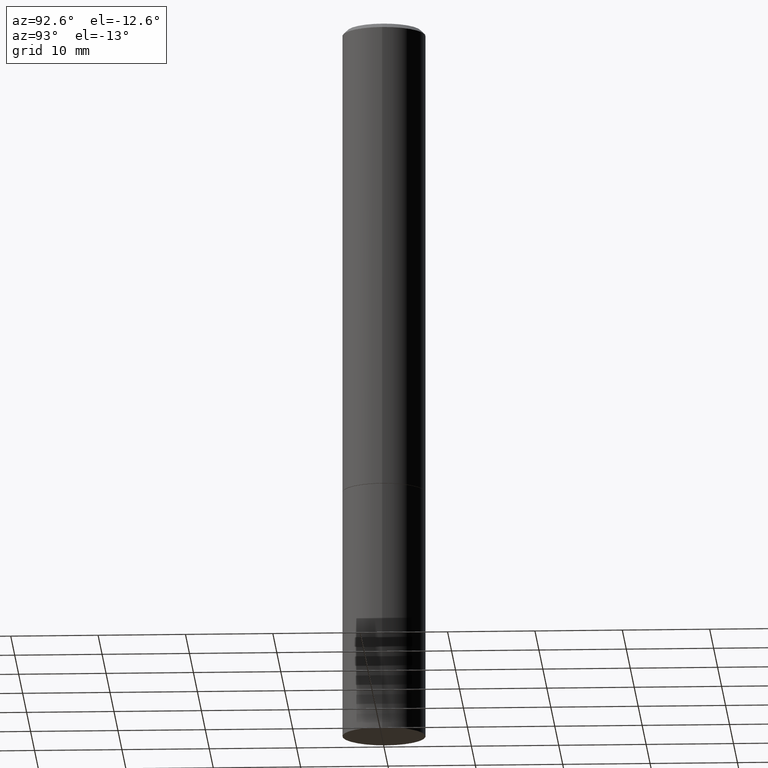
[diagram: clean part render]
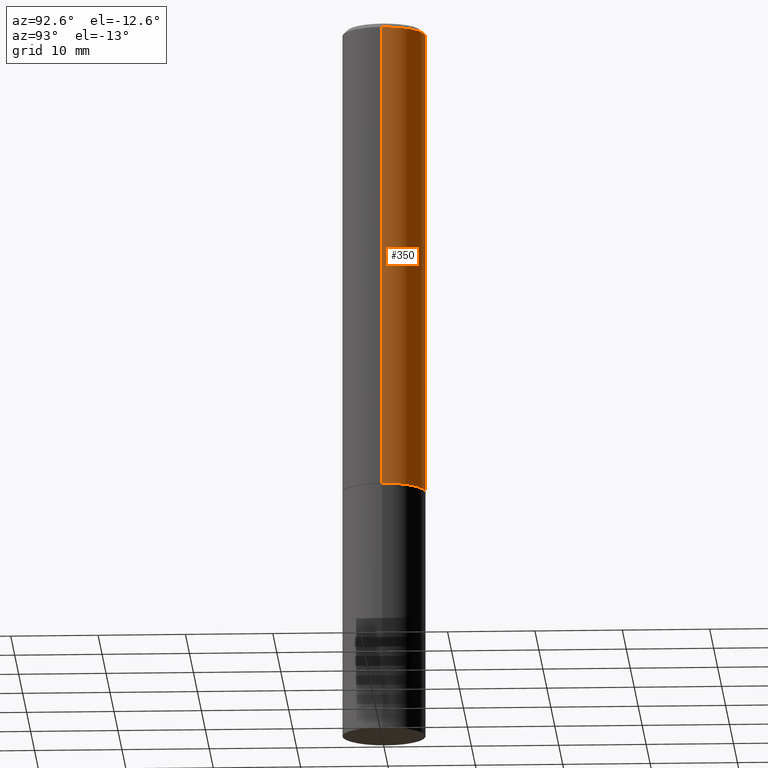
[diagram: same view with one face highlighted and labeled with its STEP entity id]
A machine part, auxiliary view. The second image highlights one B-rep face of the part: STEP entity #350.
In plain terms, the highlighted cylindrical surface (partial cylindrical patch) has radius 4.7625 mm, axis along (-0, 0, 1).
Its self-contained STEP definition (entity closure, byte-faithful):
#5 = CARTESIAN_POINT ( 'NONE',  ( -0.1874999999999998890, 1.332267629550187060E-15, -9.223003294227942385E-30 ) ) ;
#15 = CARTESIAN_POINT ( 'NONE',  ( 5.194175744337229665E-29, -7.415906363702840616E-15, -2.123999999999999666 ) ) ;
#17 = EDGE_CURVE ( 'NONE', #277, #300, #337, .T. ) ;
#26 = CIRCLE ( 'NONE', #185, 0.1875000000000000278 ) ;
#43 = CIRCLE ( 'NONE', #59, 0.1874999999999997502 ) ;
#44 = CARTESIAN_POINT ( 'NONE',  ( -0.1875000000000000278, -2.410600365689662531E-15, -2.123999999999999666 ) ) ;
#59 = AXIS2_PLACEMENT_3D ( 'NONE', #117, #230, #202 ) ;
#62 = CARTESIAN_POINT ( 'NONE',  ( 0.1875000000000000278, -8.725211865769015625E-15, -2.123999999999999666 ) ) ;
#65 = CARTESIAN_POINT ( 'NONE',  ( 0.1874999999999998890, -1.309305502066174022E-15, 9.142831454617374006E-30 ) ) ;
#88 = VECTOR ( 'NONE', #324, 39.37007874015748143 ) ;
#90 = DIRECTION ( 'NONE',  ( -2.445468806185136877E-29, 3.491481338843145188E-15, 1.000000000000000000 ) ) ;
#117 = CARTESIAN_POINT ( 'NONE',  ( 4.890937612370283668E-31, -6.982962677686305168E-17, -0.02000000000000004205 ) ) ;
#129 = VERTEX_POINT ( 'NONE', #62 ) ;
#132 = ORIENTED_EDGE ( 'NONE', *, *, #282, .T. ) ;
#157 = EDGE_CURVE ( 'NONE', #275, #300, #43, .T. ) ;
#168 = ORIENTED_EDGE ( 'NONE', *, *, #17, .T. ) ;
#178 = DIRECTION ( 'NONE',  ( -2.445468806185136597E-29, 3.491481338843145583E-15, 1.000000000000000000 ) ) ;
#183 = EDGE_LOOP ( 'NONE', ( #132, #168, #246, #306 ) ) ;
#185 = AXIS2_PLACEMENT_3D ( 'NONE', #15, #270, #240 ) ;
#199 = VECTOR ( 'NONE', #90, 39.37007874015748143 ) ;
#202 = DIRECTION ( 'NONE',  ( 1.000000000000000000, -6.982962677686265133E-15, 0.000000000000000000 ) ) ;
#203 = FACE_OUTER_BOUND ( 'NONE', #183, .T. ) ;
#206 = CARTESIAN_POINT ( 'NONE',  ( 0.000000000000000000, 0.000000000000000000, 0.000000000000000000 ) ) ;
#213 = CARTESIAN_POINT ( 'NONE',  ( -0.1874999999999997502, 1.239475875289309935E-15, -0.02000000000000004205 ) ) ;
#230 = DIRECTION ( 'NONE',  ( -2.445468806185136597E-29, 3.491481338843145583E-15, 1.000000000000000000 ) ) ;
#240 = DIRECTION ( 'NONE',  ( 1.000000000000000000, -6.982962677686266711E-15, 0.000000000000000000 ) ) ;
#246 = ORIENTED_EDGE ( 'NONE', *, *, #157, .F. ) ;
#270 = DIRECTION ( 'NONE',  ( -2.445468806185136597E-29, 3.491481338843145583E-15, 1.000000000000000000 ) ) ;
#275 = VERTEX_POINT ( 'NONE', #296 ) ;
#277 = VERTEX_POINT ( 'NONE', #44 ) ;
#282 = EDGE_CURVE ( 'NONE', #129, #277, #26, .T. ) ;
#291 = DIRECTION ( 'NONE',  ( 1.000000000000000000, -6.982962677686265922E-15, 4.876176775795935793E-29 ) ) ;
#296 = CARTESIAN_POINT ( 'NONE',  ( 0.1874999999999997502, -1.356173001359023494E-15, -0.02000000000000004205 ) ) ;
#300 = VERTEX_POINT ( 'NONE', #213 ) ;
#304 = EDGE_CURVE ( 'NONE', #129, #275, #347, .T. ) ;
#306 = ORIENTED_EDGE ( 'NONE', *, *, #304, .F. ) ;
#319 = CYLINDRICAL_SURFACE ( 'NONE', #352, 0.1874999999999998890 ) ;
#324 = DIRECTION ( 'NONE',  ( -2.445468806185136877E-29, 3.491481338843145188E-15, 1.000000000000000000 ) ) ;
#337 = LINE ( 'NONE', #5, #199 ) ;
#347 = LINE ( 'NONE', #65, #88 ) ;
#350 = ADVANCED_FACE ( 'NONE', ( #203 ), #319, .T. ) ;
#352 = AXIS2_PLACEMENT_3D ( 'NONE', #206, #178, #291 ) ;